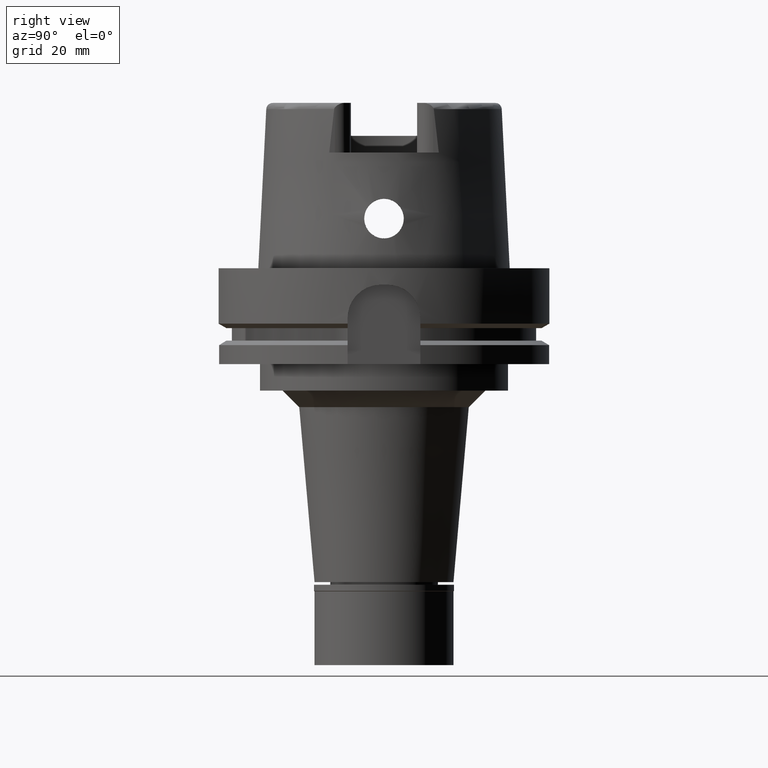
[diagram: clean part render]
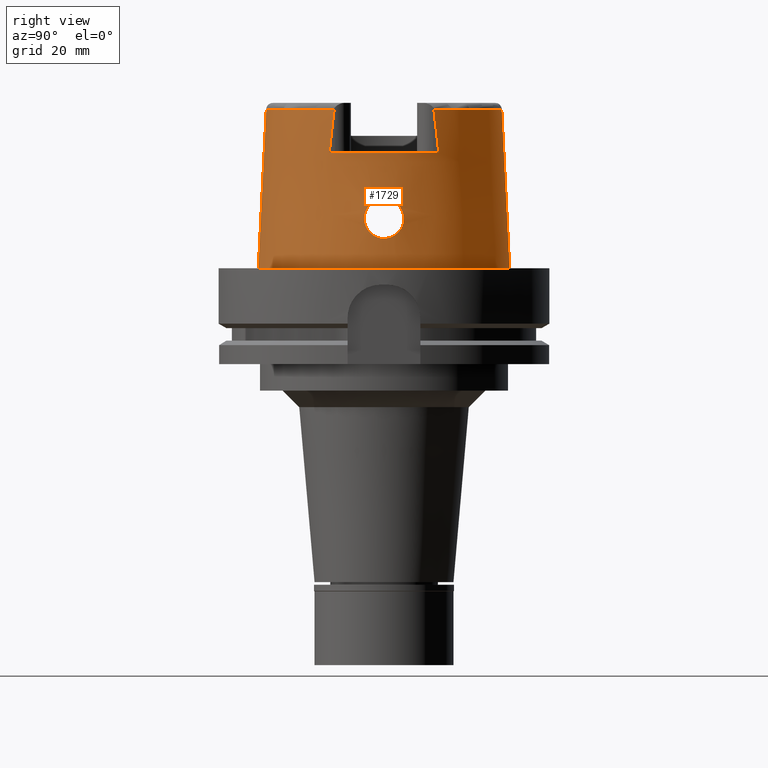
[diagram: same view with one face highlighted and labeled with its STEP entity id]
A machine part, right view. The second image highlights one B-rep face of the part: STEP entity #1729.
In plain terms, the highlighted conical surface has half-angle 2.862 deg.
Its self-contained STEP definition (entity closure, byte-faithful):
#9 = CARTESIAN_POINT ( 'NONE',  ( 36.94593818896743898, -0.7403701429537432599, 20.96707288102217248 ) ) ;
#11 = CARTESIAN_POINT ( 'NONE',  ( 36.85852714382190243, 3.191908971549161311, 20.08423727055511065 ) ) ;
#27 = DIRECTION ( 'NONE',  ( 0.0000000000000000000, 1.000000000000000000, 0.0000000000000000000 ) ) ;
#93 = DIRECTION ( 'NONE',  ( -5.154182075159067383E-05, 0.04993927430816067631, -0.9987522546783135224 ) ) ;
#115 = CARTESIAN_POINT ( 'NONE',  ( 36.89521846359379964, -2.445991553473157332, 20.48121405635166425 ) ) ;
#145 = CARTESIAN_POINT ( 'NONE',  ( 36.74765615710976618, -5.991467080274929025, 15.34396232340047739 ) ) ;
#171 = CARTESIAN_POINT ( 'NONE',  ( 36.73210398100269458, -5.234059805023737688, 17.93907929725724770 ) ) ;
#172 = CARTESIAN_POINT ( 'NONE',  ( 0.0000000000000000000, 0.0000000000000000000, 24.04993926899999934 ) ) ;
#183 = CARTESIAN_POINT ( 'NONE',  ( 36.94998175923000616, -1.503990973344999703E-13, 21.00000000000000000 ) ) ;
#194 = CARTESIAN_POINT ( 'NONE',  ( 36.71926380787385114, -5.538716099644084068, 17.30711545823161757 ) ) ;
#203 = DIRECTION ( 'NONE',  ( 0.8896561898442558736, 0.4566309931134779343, 0.0000000000000000000 ) ) ;
#221 = EDGE_LOOP ( 'NONE', ( #4230, #3418, #1688, #5341, #5432, #1106, #5013, #373 ) ) ;
#227 = CARTESIAN_POINT ( 'NONE',  ( 36.90321415727246546, -2.252639368744270065, 20.56110778466006295 ) ) ;
#282 = CARTESIAN_POINT ( 'NONE',  ( 37.31960967262249795, -3.599656572342115002, 10.18344610065908640 ) ) ;
#287 = CARTESIAN_POINT ( 'NONE',  ( 37.04016862946394184, 5.183493844632352854, 11.97169333912908229 ) ) ;
#322 = CARTESIAN_POINT ( 'NONE',  ( 36.71887550016661805, 5.552325203918126562, 17.27413933182919692 ) ) ;
#334 = CARTESIAN_POINT ( 'NONE',  ( 0.0000000000000000000, 0.0000000000000000000, 1.023181539494999863E-12 ) ) ;
#352 = CARTESIAN_POINT ( 'NONE',  ( 37.25799193581980262, 4.009587038708443352, 10.53610431743373965 ) ) ;
#373 = ORIENTED_EDGE ( 'NONE', *, *, #2203, .T. ) ;
#378 = CARTESIAN_POINT ( 'NONE',  ( 37.22669322541643311, 4.208530527588309589, 10.72351498383689616 ) ) ;
#400 = DIRECTION ( 'NONE',  ( 0.0000000000000000000, -1.000000000000000000, 0.0000000000000000000 ) ) ;
#406 = CARTESIAN_POINT ( 'NONE',  ( 37.40392656027093921, 2.880927768951371704, 9.722352375595077589 ) ) ;
#433 = CARTESIAN_POINT ( 'NONE',  ( 36.83926776245159118, 3.515524704113501819, 19.86321355839336888 ) ) ;
#550 = CARTESIAN_POINT ( 'NONE',  ( 36.94614949236957813, -5.562212192739110606, 12.75014689376637733 ) ) ;
#569 = CARTESIAN_POINT ( 'NONE',  ( 36.94998175923000616, -1.503990973344999703E-13, 21.00000000000000000 ) ) ;
#582 = CARTESIAN_POINT ( 'NONE',  ( 36.77255410421323489, -4.560848335197288606, 18.92332968382501690 ) ) ;
#612 = CARTESIAN_POINT ( 'NONE',  ( 36.79767904580332782, -4.188890143255207477, 19.29584208918918620 ) ) ;
#620 = CARTESIAN_POINT ( 'NONE',  ( 37.49303357365120348, 1.800028739411566381, 9.275515639110846422 ) ) ;
#639 = CARTESIAN_POINT ( 'NONE',  ( 36.86288630544341771, -3.101928300962232044, 20.13623704249831547 ) ) ;
#648 = VERTEX_POINT ( 'NONE', #3970 ) ;
#665 = CARTESIAN_POINT ( 'NONE',  ( -0.002482252536761000127, -35.59494263424999616, 48.09987853799000135 ) ) ;
#671 = CARTESIAN_POINT ( 'NONE',  ( 36.90246487264617770, -2.270947591700337664, 20.55363309332554422 ) ) ;
#702 = CARTESIAN_POINT ( 'NONE',  ( 37.07894343144455007, -5.006174824906442389, 11.69267993473523859 ) ) ;
#728 = CARTESIAN_POINT ( 'NONE',  ( 37.07706318093859466, -5.015063638356684450, 11.70616680492203798 ) ) ;
#734 = CARTESIAN_POINT ( 'NONE',  ( 37.28906766817775775, 3.798695067527517288, 10.35441378826551784 ) ) ;
#753 = VERTEX_POINT ( 'NONE', #569 ) ;
#758 = CARTESIAN_POINT ( 'NONE',  ( 37.21386969794476585, -4.285833248264535378, 10.80097799961733607 ) ) ;
#766 = CARTESIAN_POINT ( 'NONE',  ( 37.46214989914243176, 2.230591243301546456, 9.430014190755793280 ) ) ;
#795 = CARTESIAN_POINT ( 'NONE',  ( 37.20213132346400897, 4.359129674727913795, 10.87242676305920064 ) ) ;
#799 = CARTESIAN_POINT ( 'NONE',  ( 32.25000000000000000, -16.55285457013000183, 35.00000000000000000 ) ) ;
#809 = CARTESIAN_POINT ( 'NONE',  ( 32.25000552016999222, -15.06439826232000101, 48.10004192737000039 ) ) ;
#817 = DIRECTION ( 'NONE',  ( 0.9060280460804950309, -0.4232176505245974218, 0.0000000000000000000 ) ) ;
#818 = CARTESIAN_POINT ( 'NONE',  ( 36.87048884219730382, 5.817074461768032556, 13.47785615580346885 ) ) ;
#847 = CARTESIAN_POINT ( 'NONE',  ( 37.22838342678595325, 4.198111469751252933, 10.71328641233715473 ) ) ;
#878 = CARTESIAN_POINT ( 'NONE',  ( 36.79206586147370928, 4.273218840458398837, 19.21185864464688109 ) ) ;
#889 = CARTESIAN_POINT ( 'NONE',  ( 32.24997259576579722, 15.06456611137459944, 48.09965122323190201 ) ) ;
#978 = CARTESIAN_POINT ( 'NONE',  ( 36.93004587030824837, -5.619746668948464752, 12.89684921235614468 ) ) ;
#997 = CARTESIAN_POINT ( 'NONE',  ( 36.90494175687194911, -2.209905673765814260, 20.57830866691987026 ) ) ;
#1021 = VERTEX_POINT ( 'NONE', #799 ) ;
#1030 = CARTESIAN_POINT ( 'NONE',  ( 36.96609190034505588, -5.489429680475208073, 12.57231834701919126 ) ) ;
#1040 = CARTESIAN_POINT ( 'NONE',  ( 37.51012399903085281, 1.514929018214447254, 9.191016550818881470 ) ) ;
#1042 = DIRECTION ( 'NONE',  ( 0.0000000000000000000, 0.0000000000000000000, -1.000000000000000000 ) ) ;
#1059 = CARTESIAN_POINT ( 'NONE',  ( 32.25000552016999222, -15.06439826232000101, 48.10004192737000039 ) ) ;
#1060 = CARTESIAN_POINT ( 'NONE',  ( 36.85109823240618709, -3.315413391808343047, 20.00082403745508230 ) ) ;
#1083 = CARTESIAN_POINT ( 'NONE',  ( 36.85909493579531215, -3.172174561728005937, 20.09340862686416429 ) ) ;
#1106 = ORIENTED_EDGE ( 'NONE', *, *, #3844, .T. ) ;
#1113 = CARTESIAN_POINT ( 'NONE',  ( 37.07377194428482170, -5.030551045823145273, 11.72986902569139467 ) ) ;
#1114 = FACE_OUTER_BOUND ( 'NONE', #221, .T. ) ;
#1120 = CARTESIAN_POINT ( 'NONE',  ( 32.25000000000000000, 16.55285457013000183, 35.00000000000000000 ) ) ;
#1127 = CARTESIAN_POINT ( 'NONE',  ( 36.89414137575543151, 2.467612877377447056, 20.46949304282466642 ) ) ;
#1143 = CARTESIAN_POINT ( 'NONE',  ( 32.25000000000000000, -16.05145953015569305, 39.57800533278599175 ) ) ;
#1151 = CARTESIAN_POINT ( 'NONE',  ( 37.13271585162574695, 4.742334095442151565, 11.32304672128364942 ) ) ;
#1169 = CARTESIAN_POINT ( 'NONE',  ( 37.10339911948693725, -4.890136077316256547, 11.51781944715673944 ) ) ;
#1175 = CARTESIAN_POINT ( 'NONE',  ( 36.79040774529403990, 5.982407521986425891, 14.53127516952805109 ) ) ;
#1188 = VERTEX_POINT ( 'NONE', #4384 ) ;
#1211 = CARTESIAN_POINT ( 'NONE',  ( 36.71645932716990757, 5.675382788533092970, 16.95127806033256590 ) ) ;
#1237 = CARTESIAN_POINT ( 'NONE',  ( 36.96379937552177353, 5.496769689496525224, 12.59455666111788474 ) ) ;
#1266 = CARTESIAN_POINT ( 'NONE',  ( 36.82322624819806123, 5.928907362500537737, 14.05825864435517936 ) ) ;
#1293 = EDGE_CURVE ( 'NONE', #3301, #3685, #2666, .T. ) ;
#1296 = CARTESIAN_POINT ( 'NONE',  ( 36.93380747817978715, -1.318755146693870506, 20.85656994682641496 ) ) ;
#1298 = CARTESIAN_POINT ( 'NONE',  ( 36.79000883763630014, 4.304860023205575814, 19.17951991658235400 ) ) ;
#1325 = CIRCLE ( 'NONE', #4734, 35.59494289391000166 ) ;
#1396 = CARTESIAN_POINT ( 'NONE',  ( 36.91472688100340349, -1.953213710006371562, 20.67484385031826122 ) ) ;
#1422 = CARTESIAN_POINT ( 'NONE',  ( 36.80178715334717765, -4.126973973252257899, 19.35572331312137351 ) ) ;
#1440 = EDGE_CURVE ( 'NONE', #4987, #648, #3079, .T. ) ;
#1446 = CARTESIAN_POINT ( 'NONE',  ( 36.81702405929180344, -3.889253046288749349, 19.56983599102088789 ) ) ;
#1447 = B_SPLINE_CURVE_WITH_KNOTS ( 'NONE', 3,
 ( #809, #3803, #1143, #1642 ),
 .UNSPECIFIED., .F., .F.,
 ( 4, 4 ),
 ( 0.0000000000000000000, 1.000000000000000000 ),
 .UNSPECIFIED. ) ;
#1456 = CARTESIAN_POINT ( 'NONE',  ( 37.55000165825000380, 0.0000000000000000000, 9.000000000000000000 ) ) ;
#1478 = CARTESIAN_POINT ( 'NONE',  ( 36.89727962090108804, -5.729143875020973553, 13.21471599385687412 ) ) ;
#1506 = CARTESIAN_POINT ( 'NONE',  ( 36.87024578320644252, -2.963130225793753070, 20.21837329338911005 ) ) ;
#1525 = DIRECTION ( 'NONE',  ( 0.0000000000000000000, -1.000000000000000000, 0.0000000000000000000 ) ) ;
#1568 = CARTESIAN_POINT ( 'NONE',  ( 37.45922187100919842, 2.267033834295583805, 9.444769872595296434 ) ) ;
#1594 = CARTESIAN_POINT ( 'NONE',  ( 37.39710152346939509, -2.935991441434490756, 9.764166089995912401 ) ) ;
#1600 = CARTESIAN_POINT ( 'NONE',  ( 36.78361999195249865, 4.403323956598663713, 19.07631821329143307 ) ) ;
#1601 = EDGE_CURVE ( 'NONE', #1188, #2624, #5186, .T. ) ;
#1622 = CARTESIAN_POINT ( 'NONE',  ( 37.46539515135754073, 2.189545566756524675, 9.413677020050700506 ) ) ;
#1642 = CARTESIAN_POINT ( 'NONE',  ( 32.25000000000000000, -16.55285457013000183, 35.00000000000000000 ) ) ;
#1647 = CARTESIAN_POINT ( 'NONE',  ( 37.45162449511700942, -2.358854671801271063, 9.483060848255069786 ) ) ;
#1654 = CARTESIAN_POINT ( 'NONE',  ( 36.76887809900198079, 5.999203490143169226, 14.89964157742589634 ) ) ;
#1684 = CARTESIAN_POINT ( 'NONE',  ( 36.71847854427601732, 5.566992714690259803, 17.23804999397299298 ) ) ;
#1688 = ORIENTED_EDGE ( 'NONE', *, *, #4897, .T. ) ;
#1708 = CARTESIAN_POINT ( 'NONE',  ( 36.86765431298083229, 3.023666972060644831, 20.18622436987671165 ) ) ;
#1729 = ADVANCED_FACE ( 'NONE', ( #1114, #2285 ), #2180, .T. ) ;
#1808 = CARTESIAN_POINT ( 'NONE',  ( 36.73222062657647058, -5.952835916654485970, 15.77514581275237049 ) ) ;
#1835 = CARTESIAN_POINT ( 'NONE',  ( 36.72426917678602365, -5.401066299382069502, 17.61463588432875227 ) ) ;
#1857 = CARTESIAN_POINT ( 'NONE',  ( 36.92227512657144928, -5.646479364459088046, 12.97023267268217950 ) ) ;
#1884 = CARTESIAN_POINT ( 'NONE',  ( 36.72001428149990687, -5.514414329784327329, 17.36475088096243269 ) ) ;
#1922 = CARTESIAN_POINT ( 'NONE',  ( 36.76197370970729850, -5.999950876135634381, 15.03304178111682710 ) ) ;
#1949 = DIRECTION ( 'NONE',  ( 5.154182075151068004E-05, -0.04993927430816067631, -0.9987522546783135224 ) ) ;
#1976 = CARTESIAN_POINT ( 'NONE',  ( 37.17881214728947725, -4.488914864393465542, 11.01669538426083150 ) ) ;
#1984 = CARTESIAN_POINT ( 'NONE',  ( 36.99058652418686677, 5.392642130771092113, 12.36619049462174580 ) ) ;
#2009 = VERTEX_POINT ( 'NONE', #2355 ) ;
#2011 = CARTESIAN_POINT ( 'NONE',  ( 37.04827875774437018, -5.147717127285514671, 11.91717039500140984 ) ) ;
#2019 = CARTESIAN_POINT ( 'NONE',  ( 37.24834541846016123, 4.072665129873225709, 10.59328102324917253 ) ) ;
#2043 = CARTESIAN_POINT ( 'NONE',  ( 37.23677634493439825, 4.145936654993047199, 10.66264126855460326 ) ) ;
#2065 = CARTESIAN_POINT ( 'NONE',  ( 36.77646111587780098, 5.995480858246333256, 14.76264385286515513 ) ) ;
#2094 = VECTOR ( 'NONE', #93, 1000.000000000000227 ) ;
#2099 = CARTESIAN_POINT ( 'NONE',  ( 36.74477806699789539, 6.000616067370936335, 15.37064791789127050 ) ) ;
#2100 = B_SPLINE_CURVE_WITH_KNOTS ( 'NONE', 3,
 ( #1456, #4465, #2731, #2292, #1040, #620, #3614, #2461, #1622, #766, #3698, #4614, #1568, #2487, #406, #4183, #4212, #734, #5499, #352, #2019, #2043, #3755, #847, #378, #2543, #795, #5096, #5126, #1151, #3280, #2878, #2513, #287, #4241, #1984, #3338, #1237, #5035, #5444, #5532, #818, #1266, #3309, #1175, #3728, #2065, #2940, #1654, #5010, #5062, #2099, #3782, #3815, #3369, #2850, #1211, #5559, #4583, #1684, #2427, #4152, #322, #2914, #4645, #3399, #2964, #4696, #4671, #5474, #1600, #3427, #1298, #3000, #878, #3843, #4724, #5156, #4273, #433, #2129, #11, #1708, #3560, #3174, #1127, #5304, #5331, #2382, #4468, #5362, #183 ),
 .UNSPECIFIED., .F., .F.,
 ( 4, 2, 2, 1, 1, 1, 1, 2, 2, 2, 2, 2, 1, 1, 1, 2, 2, 2, 2, 2, 2, 1, 1, 2, 2, 2, 2, 2, 1, 2, 2, 2, 2, 1, 1, 1, 1, 2, 2, 2, 2, 2, 1, 1, 2, 2, 2, 2, 2, 2, 1, 1, 2, 2, 4 ),
 ( 0.0000000000000000000, 0.06249999999999691913, 0.09374999999999540645, 0.1093749999999946432, 0.1171874999999942824, 0.1210937499999941297, 0.1230468749999941297, 0.1240234374999941436, 0.1249999999999941713, 0.1874999999999921452, 0.2187499999999912015, 0.2343749999999908962, 0.2421874999999907296, 0.2460937499999908129, 0.2480468749999908407, 0.2490234374999908962, 0.2499999999999908962, 0.2812499999999931166, 0.2968749999999941713, 0.3124999999999952260, 0.3437499999999972800, 0.3593749999999984457, 0.3671874999999990008, 0.3710937499999992228, 0.3749999999999995004, 0.4375000000000045519, 0.4687500000000069944, 0.4843750000000083267, 0.4921875000000088818, 0.4960937500000089928, 0.5000000000000091038, 0.5625000000000111022, 0.5937500000000121014, 0.6093750000000125455, 0.6171875000000127676, 0.6210937500000128786, 0.6230468750000132117, 0.6240234375000134337, 0.6250000000000135447, 0.6875000000000133227, 0.7187500000000132117, 0.7343750000000131006, 0.7421875000000129896, 0.7460937500000132117, 0.7480468750000133227, 0.7500000000000134337, 0.7812500000000119904, 0.7968750000000111022, 0.8125000000000102141, 0.8437500000000083267, 0.8593750000000073275, 0.8671875000000068834, 0.8710937500000067724, 0.8750000000000066613, 1.000000000000000000 ),
 .UNSPECIFIED. ) ;
#2129 = CARTESIAN_POINT ( 'NONE',  ( 36.84417178899060019, 3.433598322916888712, 19.92136570814969332 ) ) ;
#2178 = CARTESIAN_POINT ( 'NONE',  ( 36.91965498226087306, -1.806463092377573076, 20.72250584756647029 ) ) ;
#2180 = CONICAL_SURFACE ( 'NONE', #5346, 36.79747973821000073, 0.04996004983832824653 ) ;
#2203 = EDGE_CURVE ( 'NONE', #3301, #1021, #2622, .T. ) ;
#2230 = B_SPLINE_CURVE_WITH_KNOTS ( 'NONE', 3,
 ( #2587, #5185, #9, #1296, #3425, #2178, #1396, #4882, #997, #227, #671, #4458, #2368, #115, #4849, #5316, #1506, #639, #1083, #3128, #2689, #1060, #4002, #3633, #5292, #1446, #4428, #1422, #612, #2777, #4514, #2311, #582, #5379, #5265, #171, #2254, #1835, #2336, #3188, #1884, #3971, #3158, #194, #3215, #4058, #4826, #1808, #4916, #145, #4941, #4481, #3521, #1922, #3604, #2284, #5348, #3103, #1478, #2749, #1857, #978, #2668, #4401, #550, #3548, #3574, #1030, #2722, #4028, #4973, #2011, #2871, #3240, #1113, #728, #702, #1169, #5054, #4091, #1976, #4206, #2843, #758, #4545, #3720, #4575, #282, #5468, #1594, #4665, #4115, #5029, #2421, #1647, #3686, #2904, #5087, #5401, #3302, #5002 ),
 .UNSPECIFIED., .F., .F.,
 ( 4, 2, 2, 1, 1, 1, 1, 2, 2, 2, 2, 1, 1, 2, 2, 2, 1, 1, 1, 2, 2, 2, 2, 2, 1, 1, 2, 2, 2, 2, 1, 1, 2, 2, 2, 2, 2, 1, 1, 1, 2, 2, 2, 2, 1, 1, 2, 2, 2, 1, 1, 1, 2, 2, 2, 2, 2, 1, 1, 2, 2, 4 ),
 ( 0.0000000000000000000, 0.06249999999998859246, 0.09374999999998284705, 0.1093749999999800021, 0.1171874999999785727, 0.1210937499999777817, 0.1230468749999775457, 0.1240234374999773931, 0.1249999999999772404, 0.1562499999999714395, 0.1718749999999686640, 0.1796874999999671096, 0.1835937499999662215, 0.1855468749999658051, 0.1874999999999653888, 0.2187499999999598099, 0.2343749999999569789, 0.2421874999999555633, 0.2460937499999546474, 0.2480468749999541755, 0.2499999999999537037, 0.3124999999999489297, 0.3437499999999465983, 0.3593749999999453770, 0.3671874999999448774, 0.3710937499999448774, 0.3730468749999451550, 0.3749999999999454880, 0.4374999999999549805, 0.4687499999999600320, 0.4843749999999623634, 0.4921874999999634737, 0.4960937499999640843, 0.4999999999999646949, 0.5624999999999730216, 0.5937499999999772404, 0.6093749999999794609, 0.6171874999999804601, 0.6210937499999810152, 0.6230468749999812372, 0.6240234374999812372, 0.6249999999999812372, 0.6562499999999812372, 0.6718749999999809042, 0.6796874999999809042, 0.6835937499999807931, 0.6855468749999807931, 0.6874999999999807931, 0.7187499999999797939, 0.7343749999999792388, 0.7421874999999789058, 0.7460937499999786837, 0.7480468749999786837, 0.7499999999999786837, 0.8124999999999824585, 0.8437499999999844569, 0.8593749999999854561, 0.8671874999999860112, 0.8710937499999864553, 0.8730468749999865663, 0.8749999999999865663, 1.000000000000000000 ),
 .UNSPECIFIED. ) ;
#2254 = CARTESIAN_POINT ( 'NONE',  ( 36.72602614319066561, -5.361243955779806392, 17.69545089663071025 ) ) ;
#2284 = CARTESIAN_POINT ( 'NONE',  ( 36.80568072458724060, -5.969088625580894814, 14.27715690189202213 ) ) ;
#2285 = FACE_BOUND ( 'NONE', #4410, .T. ) ;
#2291 = CARTESIAN_POINT ( 'NONE',  ( 32.25000000000000000, 15.55558140472517969, 43.94359200261438758 ) ) ;
#2292 = CARTESIAN_POINT ( 'NONE',  ( 37.51961867979728282, 1.324043469952922436, 9.144694771650401677 ) ) ;
#2302 = ORIENTED_EDGE ( 'NONE', *, *, #3170, .F. ) ;
#2311 = CARTESIAN_POINT ( 'NONE',  ( 36.79422561807373171, -4.240351471898913260, 19.24495096610921863 ) ) ;
#2336 = CARTESIAN_POINT ( 'NONE',  ( 36.72203719647811226, -5.457160161557575329, 17.49426591717763557 ) ) ;
#2355 = CARTESIAN_POINT ( 'NONE',  ( 0.0000000000000000000, -38.00001658251999714, 6.892264536873000076E-13 ) ) ;
#2368 = CARTESIAN_POINT ( 'NONE',  ( 36.90165393021958806, -2.290645900784341382, 20.54553580066079022 ) ) ;
#2382 = CARTESIAN_POINT ( 'NONE',  ( 36.90004234615417289, 2.329352723398965264, 20.52945030215473921 ) ) ;
#2421 = CARTESIAN_POINT ( 'NONE',  ( 37.44569220026713197, -2.428500716455102459, 9.513134259665402936 ) ) ;
#2427 = CARTESIAN_POINT ( 'NONE',  ( 36.71866721038909986, 5.559923762993414620, 17.25550153133130493 ) ) ;
#2461 = CARTESIAN_POINT ( 'NONE',  ( 37.47172988368142654, 2.107304124359720809, 9.381841453617797200 ) ) ;
#2486 = CARTESIAN_POINT ( 'NONE',  ( 0.0000000000000000000, 0.0000000000000000000, 48.09987853799000135 ) ) ;
#2487 = CARTESIAN_POINT ( 'NONE',  ( 37.43522724338524910, 2.562831851419824059, 9.565764939370492215 ) ) ;
#2513 = CARTESIAN_POINT ( 'NONE',  ( 37.06279709367596809, 5.081554899386094171, 11.80382838572092297 ) ) ;
#2543 = CARTESIAN_POINT ( 'NONE',  ( 37.22571196753165168, 4.214560688084401541, 10.72945949934551102 ) ) ;
#2587 = CARTESIAN_POINT ( 'NONE',  ( 36.94998175923000616, -1.503990973344999703E-13, 21.00000000000000000 ) ) ;
#2622 = CIRCLE ( 'NONE', #4804, 36.24995854370000359 ) ;
#2624 = VERTEX_POINT ( 'NONE', #4753 ) ;
#2666 = B_SPLINE_CURVE_WITH_KNOTS ( 'NONE', 3,
 ( #1120, #4097, #2291, #5384 ),
 .UNSPECIFIED., .F., .F.,
 ( 4, 4 ),
 ( 0.0000000000000000000, 1.000000000000000000 ),
 .UNSPECIFIED. ) ;
#2668 = CARTESIAN_POINT ( 'NONE',  ( 36.93937627192483575, -5.586646824611328555, 12.81125908001904001 ) ) ;
#2689 = CARTESIAN_POINT ( 'NONE',  ( 36.85245504792774796, -3.291391585846432655, 20.01666706497352521 ) ) ;
#2722 = CARTESIAN_POINT ( 'NONE',  ( 36.98565458342558543, -5.414325205380114525, 12.40694456812965107 ) ) ;
#2731 = CARTESIAN_POINT ( 'NONE',  ( 37.54240591363682000, 0.7521084728734315217, 9.034675653840396947 ) ) ;
#2749 = CARTESIAN_POINT ( 'NONE',  ( 36.90703596358192584, -5.697796772980811220, 13.11695714359807852 ) ) ;
#2777 = CARTESIAN_POINT ( 'NONE',  ( 36.79591777490804816, -4.215187309061134258, 19.26993528751609119 ) ) ;
#2843 = CARTESIAN_POINT ( 'NONE',  ( 37.20948008332769064, -4.311723924189388768, 10.82745838122826498 ) ) ;
#2850 = CARTESIAN_POINT ( 'NONE',  ( 36.71651097208788173, 5.721550476340749647, 16.80933399653672922 ) ) ;
#2871 = CARTESIAN_POINT ( 'NONE',  ( 37.05760079296520360, -5.105668243386025651, 11.84761961500326777 ) ) ;
#2877 = DIRECTION ( 'NONE',  ( 0.0000000000000000000, 0.0000000000000000000, -1.000000000000000000 ) ) ;
#2878 = CARTESIAN_POINT ( 'NONE',  ( 37.09750089810826523, 4.918567383542388427, 11.56239571948682254 ) ) ;
#2904 = CARTESIAN_POINT ( 'NONE',  ( 37.45574746393113941, -2.309328320519451250, 9.462210019188066923 ) ) ;
#2914 = CARTESIAN_POINT ( 'NONE',  ( 36.72234536024789975, 5.429212531606507852, 17.57400882199174319 ) ) ;
#2940 = CARTESIAN_POINT ( 'NONE',  ( 36.77255417203191712, 5.997934391243147090, 14.83142088287764437 ) ) ;
#2964 = CARTESIAN_POINT ( 'NONE',  ( 36.75587123899208564, 4.838315013750848159, 18.55473781103505360 ) ) ;
#3000 = CARTESIAN_POINT ( 'NONE',  ( 36.79131345088849514, 4.284788143967446672, 19.20009489343015829 ) ) ;
#3014 = CARTESIAN_POINT ( 'NONE',  ( 0.0000000000000000000, 0.0000000000000000000, 48.09987853799000135 ) ) ;
#3079 = CIRCLE ( 'NONE', #3261, 35.59494289391000166 ) ;
#3085 = CARTESIAN_POINT ( 'NONE',  ( 0.0000000000000000000, 0.0000000000000000000, 35.00000000000000000 ) ) ;
#3103 = CARTESIAN_POINT ( 'NONE',  ( 36.86921989079518625, -5.814906756330274540, 13.50729322762046181 ) ) ;
#3124 = LINE ( 'NONE', #665, #3517 ) ;
#3128 = CARTESIAN_POINT ( 'NONE',  ( 36.85447631736425933, -3.255442956317031289, 20.04019016436581779 ) ) ;
#3158 = CARTESIAN_POINT ( 'NONE',  ( 36.71936587765323168, -5.535312588416775981, 17.31526017569577292 ) ) ;
#3170 = EDGE_CURVE ( 'NONE', #753, #4030, #2230, .T. ) ;
#3174 = CARTESIAN_POINT ( 'NONE',  ( 36.88702739167580802, 2.627694354678086874, 20.39563849359509007 ) ) ;
#3183 = CARTESIAN_POINT ( 'NONE',  ( 32.25000000000000000, 16.55285457013000183, 35.00000000000000000 ) ) ;
#3188 = CARTESIAN_POINT ( 'NONE',  ( 36.72102207364893189, -5.484297314952469193, 17.43429364527625580 ) ) ;
#3215 = CARTESIAN_POINT ( 'NONE',  ( 36.71465568861756168, -5.697298235578492687, 16.92414899744897028 ) ) ;
#3240 = CARTESIAN_POINT ( 'NONE',  ( 37.06886267304116700, -5.053555836567983128, 11.76535078797803990 ) ) ;
#3261 = AXIS2_PLACEMENT_3D ( 'NONE', #2486, #2877, #817 ) ;
#3280 = CARTESIAN_POINT ( 'NONE',  ( 37.10938278135807167, 4.860566944027317149, 11.48082295567770927 ) ) ;
#3301 = VERTEX_POINT ( 'NONE', #3183 ) ;
#3302 = CARTESIAN_POINT ( 'NONE',  ( 37.55000165824999669, -0.7490161162159811870, 8.999999999999998224 ) ) ;
#3309 = CARTESIAN_POINT ( 'NONE',  ( 36.80911379822212837, 5.955862683743910146, 14.24945979743275970 ) ) ;
#3338 = CARTESIAN_POINT ( 'NONE',  ( 36.97178557240128072, 5.466360614829497422, 12.52546445640716222 ) ) ;
#3369 = CARTESIAN_POINT ( 'NONE',  ( 36.71772428775307873, 5.806532209334515748, 16.52430349973858981 ) ) ;
#3399 = CARTESIAN_POINT ( 'NONE',  ( 36.74862098925695619, 4.956092062681668686, 18.38752180498908828 ) ) ;
#3418 = ORIENTED_EDGE ( 'NONE', *, *, #1440, .T. ) ;
#3425 = CARTESIAN_POINT ( 'NONE',  ( 36.92875301535161725, -1.513444507267290851, 20.80956229346422859 ) ) ;
#3427 = CARTESIAN_POINT ( 'NONE',  ( 36.78806490684615937, 4.334783835805485985, 19.14862422448590351 ) ) ;
#3517 = VECTOR ( 'NONE', #1949, 1000.000000000000227 ) ;
#3521 = CARTESIAN_POINT ( 'NONE',  ( 36.76073476635755100, -5.999765659145871233, 15.05811431437308556 ) ) ;
#3548 = CARTESIAN_POINT ( 'NONE',  ( 36.94751389902000938, -5.557253822864806736, 12.73792718398828150 ) ) ;
#3556 = CARTESIAN_POINT ( 'NONE',  ( 37.55000165825000380, 0.0000000000000000000, 9.000000000000000000 ) ) ;
#3560 = CARTESIAN_POINT ( 'NONE',  ( 36.88068046562631963, 2.761343050051492831, 20.32774397405606237 ) ) ;
#3574 = CARTESIAN_POINT ( 'NONE',  ( 36.94834525227629030, -5.554224288828796041, 12.73050239439856313 ) ) ;
#3575 = DIRECTION ( 'NONE',  ( 0.0000000000000000000, 0.0000000000000000000, -1.000000000000000000 ) ) ;
#3604 = CARTESIAN_POINT ( 'NONE',  ( 36.78116692910258934, -6.000625893241554820, 14.65204687610512124 ) ) ;
#3614 = CARTESIAN_POINT ( 'NONE',  ( 37.48377625990386264, 1.942269178093864790, 9.321516853034713890 ) ) ;
#3633 = CARTESIAN_POINT ( 'NONE',  ( 36.84040487331996871, -3.503082439915690571, 19.87515890928325391 ) ) ;
#3685 = VERTEX_POINT ( 'NONE', #889 ) ;
#3686 = CARTESIAN_POINT ( 'NONE',  ( 37.45410635061607962, -2.329122945901141772, 9.470506219696870787 ) ) ;
#3698 = CARTESIAN_POINT ( 'NONE',  ( 37.46074238689602254, 2.248165515169204820, 9.437105812014980444 ) ) ;
#3720 = CARTESIAN_POINT ( 'NONE',  ( 37.21805699563027758, -4.261047093053272228, 10.77582251066955443 ) ) ;
#3728 = CARTESIAN_POINT ( 'NONE',  ( 36.78458283132398066, 5.988942214457020796, 14.62438610167061626 ) ) ;
#3755 = CARTESIAN_POINT ( 'NONE',  ( 37.23091310735322423, 4.182474970734085140, 10.69799180116652870 ) ) ;
#3782 = CARTESIAN_POINT ( 'NONE',  ( 36.73132003726614414, 5.964941694995228971, 15.75664875832049105 ) ) ;
#3794 = DIRECTION ( 'NONE',  ( 0.0000000000000000000, 0.0000000000000000000, 1.000000000000000000 ) ) ;
#3803 = CARTESIAN_POINT ( 'NONE',  ( 32.25000000000000000, -15.55533877003902710, 43.94468597524266329 ) ) ;
#3815 = CARTESIAN_POINT ( 'NONE',  ( 36.72001319930213725, 5.853375365987801615, 16.33276348872832173 ) ) ;
#3843 = CARTESIAN_POINT ( 'NONE',  ( 36.80167412131000759, 4.125542198464792421, 19.36107117668687039 ) ) ;
#3844 = EDGE_CURVE ( 'NONE', #1188, #3685, #1325, .T. ) ;
#3970 = CARTESIAN_POINT ( 'NONE',  ( 1.065814103639999922E-14, -35.59494289391000166, 48.09987853799000135 ) ) ;
#3971 = CARTESIAN_POINT ( 'NONE',  ( 36.71962019582564807, -5.526996304890576361, 17.33504324978660094 ) ) ;
#4002 = CARTESIAN_POINT ( 'NONE',  ( 36.85031012489623237, -3.329295394189740964, 19.99158728144387709 ) ) ;
#4028 = CARTESIAN_POINT ( 'NONE',  ( 37.01852932638531257, -5.277925260840675925, 12.14461588983695961 ) ) ;
#4030 = VERTEX_POINT ( 'NONE', #3556 ) ;
#4058 = CARTESIAN_POINT ( 'NONE',  ( 36.71608632853784115, -5.811481255229972831, 16.54253900854318360 ) ) ;
#4086 = EDGE_CURVE ( 'NONE', #4030, #753, #2100, .T. ) ;
#4091 = CARTESIAN_POINT ( 'NONE',  ( 37.16135545958921682, -4.585429155484931130, 11.12913542935692846 ) ) ;
#4097 = CARTESIAN_POINT ( 'NONE',  ( 32.25000000000000000, 16.05167220971940623, 39.57715432427505675 ) ) ;
#4115 = CARTESIAN_POINT ( 'NONE',  ( 37.42938808041913035, -2.609449946306785062, 9.596421665122850442 ) ) ;
#4152 = CARTESIAN_POINT ( 'NONE',  ( 36.71879587849005588, 5.555191890957832612, 17.26713088787856165 ) ) ;
#4183 = CARTESIAN_POINT ( 'NONE',  ( 37.34546273018796114, 3.377024177618123790, 10.03673141789524870 ) ) ;
#4206 = CARTESIAN_POINT ( 'NONE',  ( 37.19924613011846048, -4.371561720830118070, 10.88980348824670408 ) ) ;
#4212 = CARTESIAN_POINT ( 'NONE',  ( 37.32405598592502116, 3.545426592047515424, 10.15477842124181684 ) ) ;
#4230 = ORIENTED_EDGE ( 'NONE', *, *, #5079, .F. ) ;
#4241 = CARTESIAN_POINT ( 'NONE',  ( 37.00698704126016025, 5.324851092313525491, 12.23309319598732614 ) ) ;
#4273 = CARTESIAN_POINT ( 'NONE',  ( 36.82970783298247142, 3.673726116082465243, 19.74483893127965572 ) ) ;
#4274 = CIRCLE ( 'NONE', #5187, 38.00001658251999714 ) ;
#4384 = CARTESIAN_POINT ( 'NONE',  ( 0.0000000000000000000, 35.59494289391000166, 48.09987853799000135 ) ) ;
#4401 = CARTESIAN_POINT ( 'NONE',  ( 36.94410760621401835, -5.569615132683840564, 12.76847787493007047 ) ) ;
#4410 = EDGE_LOOP ( 'NONE', ( #5412, #2302 ) ) ;
#4428 = CARTESIAN_POINT ( 'NONE',  ( 36.80999727025371016, -4.000945306663282075, 19.47318666949044896 ) ) ;
#4458 = CARTESIAN_POINT ( 'NONE',  ( 36.90196337516243830, -2.283151598270239724, 20.54862706251251581 ) ) ;
#4465 = CARTESIAN_POINT ( 'NONE',  ( 37.55000165824999669, 0.3718859432089420269, 9.000000000000000000 ) ) ;
#4468 = CARTESIAN_POINT ( 'NONE',  ( 36.93367501210320114, 1.520510810216619157, 20.86597945594197157 ) ) ;
#4481 = CARTESIAN_POINT ( 'NONE',  ( 36.75843594040532736, -5.999116713080086427, 15.10565936325910386 ) ) ;
#4514 = CARTESIAN_POINT ( 'NONE',  ( 36.79474344911637473, -4.232665457688446153, 19.25261031994893557 ) ) ;
#4545 = CARTESIAN_POINT ( 'NONE',  ( 37.21679691539399926, -4.268518480677768068, 10.78337784811826872 ) ) ;
#4575 = CARTESIAN_POINT ( 'NONE',  ( 37.27311250503056073, -3.933532306223539443, 10.44699427260513858 ) ) ;
#4583 = CARTESIAN_POINT ( 'NONE',  ( 36.71806867561438281, 5.583284936961445233, 17.19727792102773023 ) ) ;
#4614 = CARTESIAN_POINT ( 'NONE',  ( 37.45980033653872709, 2.259877905476296078, 9.441853565922039948 ) ) ;
#4645 = CARTESIAN_POINT ( 'NONE',  ( 36.73019544660711233, 5.270837915652823114, 17.89324691637743570 ) ) ;
#4665 = CARTESIAN_POINT ( 'NONE',  ( 37.42163940960540458, -2.690694692789350029, 9.636357330178814351 ) ) ;
#4671 = CARTESIAN_POINT ( 'NONE',  ( 36.77286564337894958, 4.570195703039487967, 18.88917047138251704 ) ) ;
#4696 = CARTESIAN_POINT ( 'NONE',  ( 36.76840921687251296, 4.639937200772251913, 18.80556776871232216 ) ) ;
#4724 = CARTESIAN_POINT ( 'NONE',  ( 36.81088947652050081, 3.979609987336998778, 19.49463508951476953 ) ) ;
#4734 = AXIS2_PLACEMENT_3D ( 'NONE', #3014, #4741, #27 ) ;
#4741 = DIRECTION ( 'NONE',  ( 0.0000000000000000000, 0.0000000000000000000, -1.000000000000000000 ) ) ;
#4753 = CARTESIAN_POINT ( 'NONE',  ( 0.0000000000000000000, 38.00001658251999714, 1.023181539494999863E-12 ) ) ;
#4804 = AXIS2_PLACEMENT_3D ( 'NONE', #3085, #1042, #203 ) ;
#4826 = CARTESIAN_POINT ( 'NONE',  ( 36.72708096721697757, -5.924729413926205446, 15.96735030622279261 ) ) ;
#4849 = CARTESIAN_POINT ( 'NONE',  ( 36.88778728293095099, -2.610192849521777880, 20.40610592910143239 ) ) ;
#4882 = CARTESIAN_POINT ( 'NONE',  ( 36.90831403129015342, -2.124388067612157371, 20.61175357815233511 ) ) ;
#4897 = EDGE_CURVE ( 'NONE', #648, #2009, #3124, .T. ) ;
#4916 = CARTESIAN_POINT ( 'NONE',  ( 36.74214228531536719, -5.980932424065556141, 15.48756944035809902 ) ) ;
#4941 = CARTESIAN_POINT ( 'NONE',  ( 36.75505683178010941, -5.997718520630453298, 15.17703629717699698 ) ) ;
#4973 = CARTESIAN_POINT ( 'NONE',  ( 37.03007602709504908, -5.228496508219688366, 12.05480998107894663 ) ) ;
#4987 = VERTEX_POINT ( 'NONE', #1059 ) ;
#5002 = CARTESIAN_POINT ( 'NONE',  ( 37.55000165825000380, 0.0000000000000000000, 9.000000000000000000 ) ) ;
#5010 = CARTESIAN_POINT ( 'NONE',  ( 36.76647868827436838, 5.999790731855550341, 14.94499542684664739 ) ) ;
#5013 = ORIENTED_EDGE ( 'NONE', *, *, #1293, .F. ) ;
#5029 = CARTESIAN_POINT ( 'NONE',  ( 37.44036514979237751, -2.488641075059203622, 9.540271292418760041 ) ) ;
#5035 = CARTESIAN_POINT ( 'NONE',  ( 36.95849110068780163, 5.516775453318664368, 12.64080028958955637 ) ) ;
#5054 = CARTESIAN_POINT ( 'NONE',  ( 37.12651962382157222, -4.772790217884161024, 11.35864231460388751 ) ) ;
#5062 = CARTESIAN_POINT ( 'NONE',  ( 36.76536736995338828, 5.999952918969487570, 14.96637724070449416 ) ) ;
#5079 = EDGE_CURVE ( 'NONE', #4987, #1021, #1447, .T. ) ;
#5087 = CARTESIAN_POINT ( 'NONE',  ( 37.45640346186002034, -2.301374466884977377, 9.458895547552309324 ) ) ;
#5096 = CARTESIAN_POINT ( 'NONE',  ( 37.17910958064418736, 4.492478693327639938, 11.01797695425038093 ) ) ;
#5126 = CARTESIAN_POINT ( 'NONE',  ( 37.14434347082856647, 4.681273078661275733, 11.24561583615605898 ) ) ;
#5156 = CARTESIAN_POINT ( 'NONE',  ( 36.82497094003021942, 3.751364693825161467, 19.68369757709916357 ) ) ;
#5185 = CARTESIAN_POINT ( 'NONE',  ( 36.94998175922997774, -0.3625529265062678586, 20.99999999999999645 ) ) ;
#5186 = LINE ( 'NONE', #5267, #2094 ) ;
#5187 = AXIS2_PLACEMENT_3D ( 'NONE', #334, #3794, #1525 ) ;
#5265 = CARTESIAN_POINT ( 'NONE',  ( 36.73723179100825575, -5.138971860162339311, 18.10309508622620456 ) ) ;
#5267 = CARTESIAN_POINT ( 'NONE',  ( 0.002482252536764999965, 35.59494263424999616, 48.09987853799000135 ) ) ;
#5292 = CARTESIAN_POINT ( 'NONE',  ( 36.83106369866836616, -3.661248654223604238, 19.75752238707611141 ) ) ;
#5304 = CARTESIAN_POINT ( 'NONE',  ( 36.89712791972278438, 2.398138779228173423, 20.49996105010744074 ) ) ;
#5316 = CARTESIAN_POINT ( 'NONE',  ( 36.87485441967080391, -2.872862656542202853, 20.26843735501669386 ) ) ;
#5331 = CARTESIAN_POINT ( 'NONE',  ( 36.89910510317824333, 2.351632533315870521, 20.52000594070217332 ) ) ;
#5341 = ORIENTED_EDGE ( 'NONE', *, *, #5411, .T. ) ;
#5346 = AXIS2_PLACEMENT_3D ( 'NONE', #172, #3575, #400 ) ;
#5348 = CARTESIAN_POINT ( 'NONE',  ( 36.85212580130664861, -5.861037846154708575, 13.70139857651681048 ) ) ;
#5362 = CARTESIAN_POINT ( 'NONE',  ( 36.94998175922998485, 0.7275958984797413764, 21.00000000000000000 ) ) ;
#5379 = CARTESIAN_POINT ( 'NONE',  ( 36.75584297541727352, -4.819568988052957081, 18.59509086730845340 ) ) ;
#5384 = CARTESIAN_POINT ( 'NONE',  ( 32.24997259576579722, 15.06456611137459944, 48.09965122323190201 ) ) ;
#5401 = CARTESIAN_POINT ( 'NONE',  ( 37.51912390273989928, -1.534330471613968294, 9.142232841411182420 ) ) ;
#5411 = EDGE_CURVE ( 'NONE', #2009, #2624, #4274, .T. ) ;
#5412 = ORIENTED_EDGE ( 'NONE', *, *, #4086, .F. ) ;
#5432 = ORIENTED_EDGE ( 'NONE', *, *, #1601, .F. ) ;
#5444 = CARTESIAN_POINT ( 'NONE',  ( 36.95599675924431438, 5.526084533506759655, 12.66267181848757417 ) ) ;
#5468 = CARTESIAN_POINT ( 'NONE',  ( 37.37902043445240707, -3.101627858380613834, 9.860050160348563963 ) ) ;
#5474 = CARTESIAN_POINT ( 'NONE',  ( 36.77996593395806713, 4.459895542662483336, 19.01402736393611903 ) ) ;
#5499 = CARTESIAN_POINT ( 'NONE',  ( 37.27692519536987703, 3.883219495549622202, 10.42471663253159520 ) ) ;
#5532 = CARTESIAN_POINT ( 'NONE',  ( 36.90856423029217837, 5.701089343117894614, 13.08161917549893261 ) ) ;
#5559 = CARTESIAN_POINT ( 'NONE',  ( 36.71737034736612060, 5.615061388328975056, 17.11553207736883309 ) ) ;